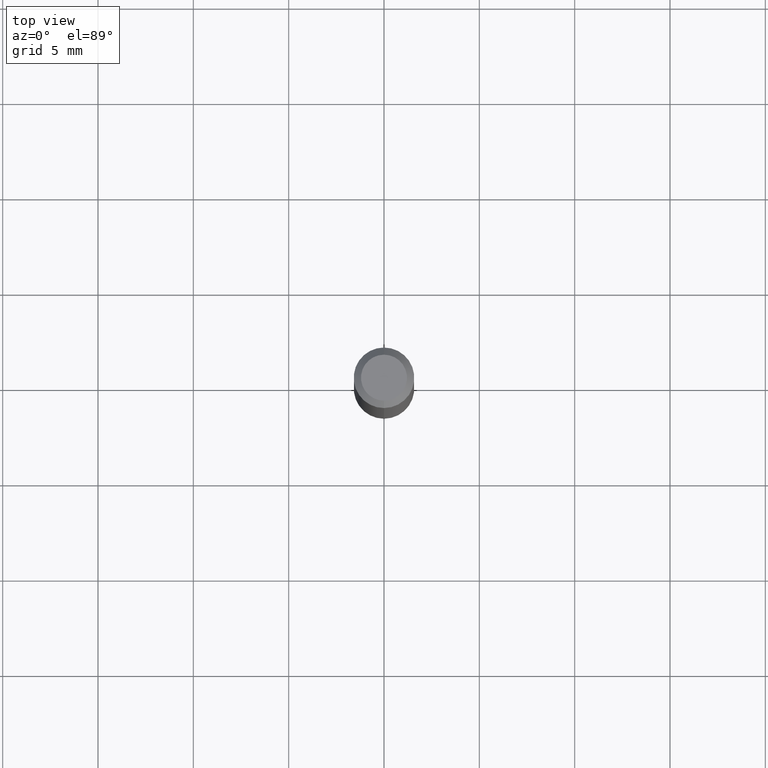
[diagram: clean part render]
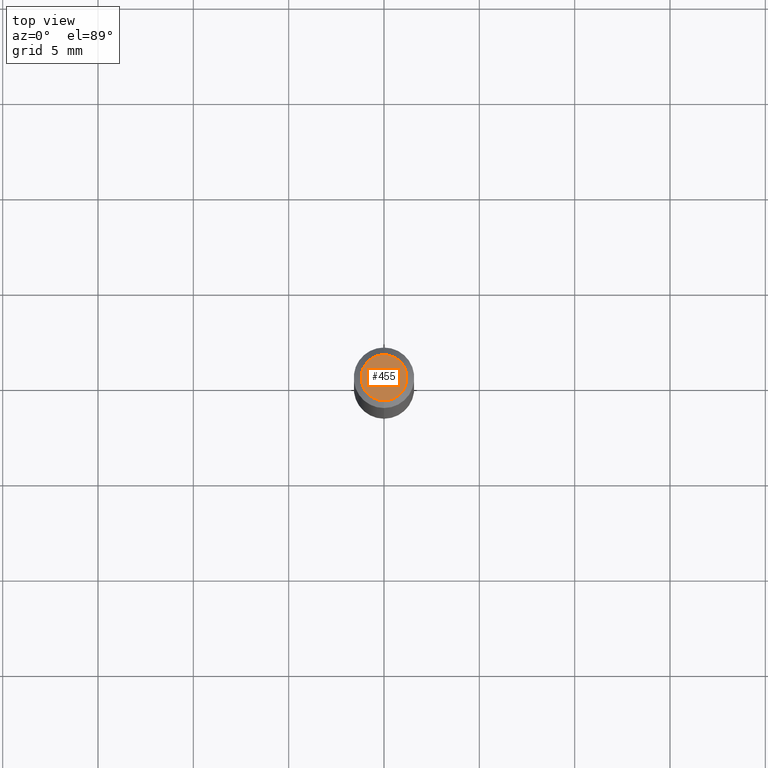
[diagram: same view with one face highlighted and labeled with its STEP entity id]
A machine part, top view. The second image highlights one B-rep face of the part: STEP entity #455.
In plain terms, the highlighted planar face has unit normal (0, -0, -1).
Its self-contained STEP definition (entity closure, byte-faithful):
#12 = EDGE_LOOP ( 'NONE', ( #171, #205 ) ) ;
#15 = AXIS2_PLACEMENT_3D ( 'NONE', #32, #442, #362 ) ;
#28 = DIRECTION ( 'NONE',  ( -6.982962677686265133E-15, -1.000000000000000000, 3.491325491368088236E-15 ) ) ;
#32 = CARTESIAN_POINT ( 'NONE',  ( 3.316907271900976589E-16, 0.04750000000000000749, -2.924926253430366371E-17 ) ) ;
#73 = AXIS2_PLACEMENT_3D ( 'NONE', #243, #120, #446 ) ;
#84 = VERTEX_POINT ( 'NONE', #98 ) ;
#98 = CARTESIAN_POINT ( 'NONE',  ( 3.840629472727447874E-16, 0.04750000000000000749, 1.073394357713768884E-16 ) ) ;
#120 = DIRECTION ( 'NONE',  ( -2.445577633895310376E-29, 3.491325491368088236E-15, 1.000000000000000000 ) ) ;
#171 = ORIENTED_EDGE ( 'NONE', *, *, #204, .T. ) ;
#188 = CIRCLE ( 'NONE', #372, 0.04750000000000000749 ) ;
#204 = EDGE_CURVE ( 'NONE', #84, #323, #423, .T. ) ;
#205 = ORIENTED_EDGE ( 'NONE', *, *, #233, .T. ) ;
#221 = DIRECTION ( 'NONE',  ( -2.445577633895310376E-29, 3.491325491368088236E-15, 1.000000000000000000 ) ) ;
#233 = EDGE_CURVE ( 'NONE', #323, #84, #188, .T. ) ;
#239 = FACE_OUTER_BOUND ( 'NONE', #12, .T. ) ;
#243 = CARTESIAN_POINT ( 'NONE',  ( -6.680765312384932714E-45, 9.537512084548153961E-31, 2.731773966113611166E-16 ) ) ;
#273 = PLANE ( 'NONE',  #15 ) ;
#323 = VERTEX_POINT ( 'NONE', #381 ) ;
#362 = DIRECTION ( 'NONE',  ( 6.982962677686265922E-15, 1.000000000000000000, -3.491325491368088236E-15 ) ) ;
#372 = AXIS2_PLACEMENT_3D ( 'NONE', #507, #221, #28 ) ;
#381 = CARTESIAN_POINT ( 'NONE',  ( -3.773273898774340269E-16, -0.04750000000000000749, 4.390153574513453078E-16 ) ) ;
#423 = CIRCLE ( 'NONE', #73, 0.04750000000000000749 ) ;
#442 = DIRECTION ( 'NONE',  ( 2.445577633895310096E-29, -3.491325491368088236E-15, -1.000000000000000000 ) ) ;
#446 = DIRECTION ( 'NONE',  ( -6.982962677686265133E-15, -1.000000000000000000, 3.491325491368088236E-15 ) ) ;
#455 = ADVANCED_FACE ( 'NONE', ( #239 ), #273, .F. ) ;
#507 = CARTESIAN_POINT ( 'NONE',  ( -6.680765312384932714E-45, 9.537512084548153961E-31, 2.731773966113611166E-16 ) ) ;